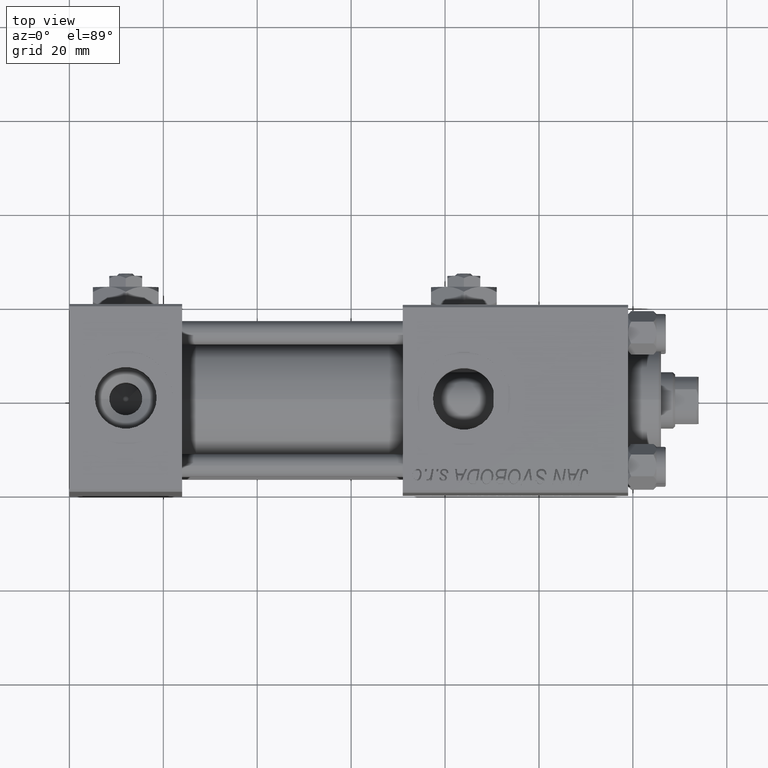
[diagram: clean part render]
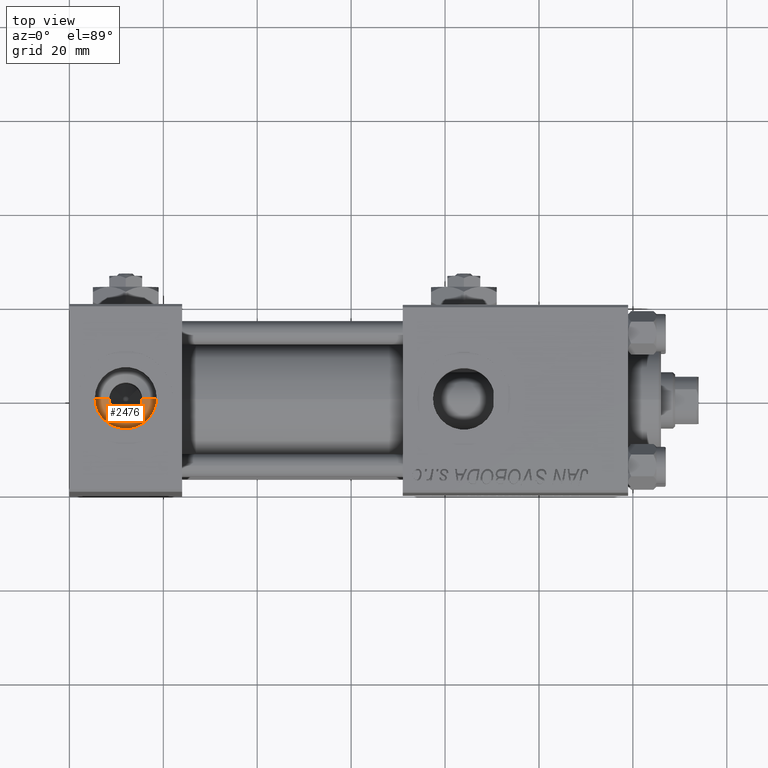
[diagram: same view with one face highlighted and labeled with its STEP entity id]
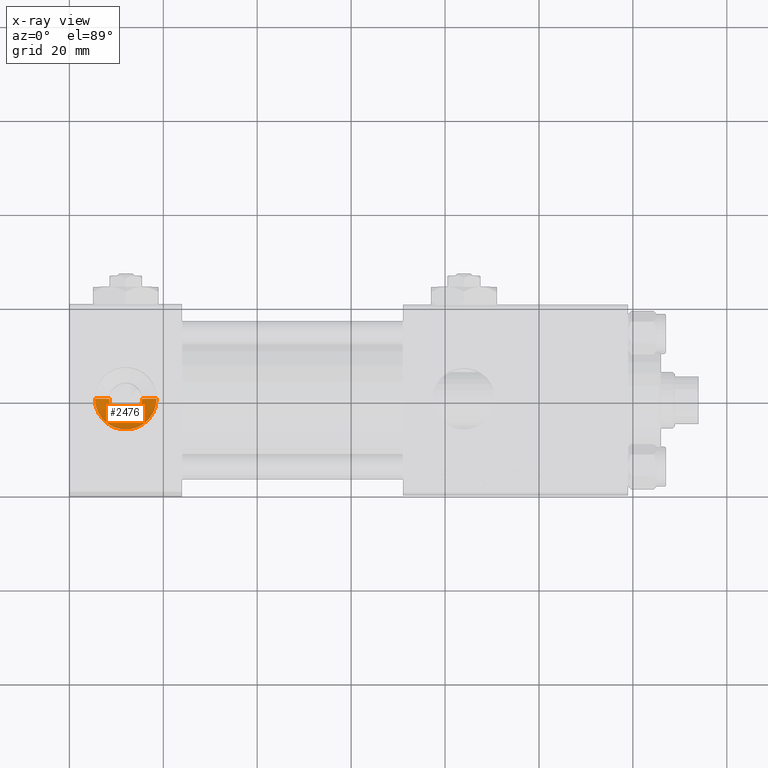
[diagram: x-ray of the same camera — body ghosted, the highlighted face saturated]
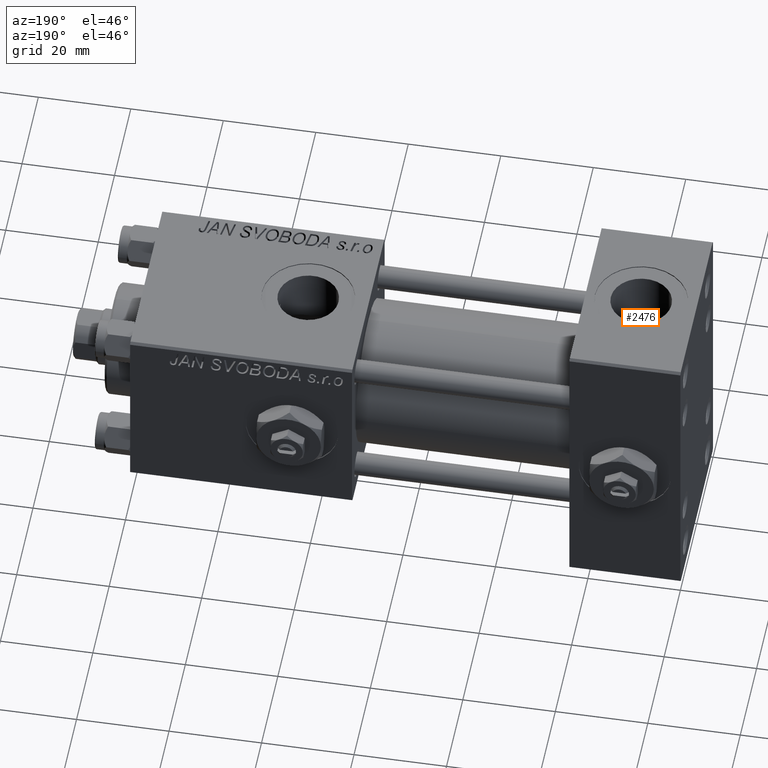
[diagram: same view with one face highlighted and labeled with its STEP entity id]
A machine part, top view. The second image highlights one B-rep face of the part: STEP entity #2476.
The next image is the same camera in x-ray: the body ghosted, the highlighted face saturated — about 0% of this face is hidden behind the body in this view.
A second angle (auxiliary view) of the same face is appended — the face is thin or edge-on in the first view.
In plain terms, the highlighted conical surface has half-angle 60.452 deg.
Its self-contained STEP definition (entity closure, byte-faithful):
#2476 = ADVANCED_FACE ( 'NONE', ( #31775 ), #3597, .F. ) ;
#3597 = CONICAL_SURFACE ( 'NONE', #32930, 3.499999999999999556, 1.055086625138361267 ) ;
#3741 = VERTEX_POINT ( 'NONE', #21583 ) ;
#3751 = CARTESIAN_POINT ( 'NONE',  ( 8.500000000000000000, 5.632796807631995091E-15, 19.41999999999999815 ) ) ;
#7485 = CARTESIAN_POINT ( 'NONE',  ( 8.500000000000000000, 5.632796807631995091E-15, 19.41999999999999815 ) ) ;
#10350 = EDGE_CURVE ( 'NONE', #45251, #3741, #27151, .T. ) ;
#10430 = CIRCLE ( 'NONE', #17139, 3.499999999999999556 ) ;
#11053 = DIRECTION ( 'NONE',  ( 0.000000000000000000, 0.000000000000000000, 1.000000000000000000 ) ) ;
#12320 = AXIS2_PLACEMENT_3D ( 'NONE', #24528, #37395, #49219 ) ;
#15356 = ORIENTED_EDGE ( 'NONE', *, *, #37082, .F. ) ;
#16959 = EDGE_LOOP ( 'NONE', ( #15356, #49316, #23112, #39649 ) ) ;
#17139 = AXIS2_PLACEMENT_3D ( 'NONE', #46430, #26470, #42492 ) ;
#18681 = DIRECTION ( 'NONE',  ( 1.000000000000000000, 0.000000000000000000, 0.000000000000000000 ) ) ;
#19350 = EDGE_CURVE ( 'NONE', #3741, #38609, #24909, .T. ) ;
#19452 = CARTESIAN_POINT ( 'NONE',  ( 12.00000000000000000, 5.204170427930421283E-15, 19.41999999999999815 ) ) ;
#20346 = LINE ( 'NONE', #7485, #51266 ) ;
#21583 = CARTESIAN_POINT ( 'NONE',  ( 18.57999999999999829, 5.204170427930421283E-15, 21.16598726114649764 ) ) ;
#22440 = DIRECTION ( 'NONE',  ( 0.8699429503561852961, 0.000000000000000000, 0.4931523731318503412 ) ) ;
#23047 = VECTOR ( 'NONE', #22440, 1000.000000000000000 ) ;
#23112 = ORIENTED_EDGE ( 'NONE', *, *, #19350, .F. ) ;
#24528 = CARTESIAN_POINT ( 'NONE',  ( 12.00000000000000000, 5.204170427930421283E-15, 21.16598726114649764 ) ) ;
#24909 = CIRCLE ( 'NONE', #12320, 6.579999999999999183 ) ;
#26470 = DIRECTION ( 'NONE',  ( 0.000000000000000000, 0.000000000000000000, 1.000000000000000000 ) ) ;
#27151 = LINE ( 'NONE', #46867, #23047 ) ;
#30322 = EDGE_CURVE ( 'NONE', #31754, #38609, #20346, .T. ) ;
#31754 = VERTEX_POINT ( 'NONE', #3751 ) ;
#31775 = FACE_OUTER_BOUND ( 'NONE', #16959, .T. ) ;
#32930 = AXIS2_PLACEMENT_3D ( 'NONE', #19452, #11053, #18681 ) ;
#37082 = EDGE_CURVE ( 'NONE', #31754, #45251, #10430, .T. ) ;
#37395 = DIRECTION ( 'NONE',  ( -0.000000000000000000, -0.000000000000000000, -1.000000000000000000 ) ) ;
#38609 = VERTEX_POINT ( 'NONE', #50777 ) ;
#39649 = ORIENTED_EDGE ( 'NONE', *, *, #10350, .F. ) ;
#42492 = DIRECTION ( 'NONE',  ( 1.000000000000000000, 0.000000000000000000, 0.000000000000000000 ) ) ;
#44498 = DIRECTION ( 'NONE',  ( -0.8699429503561852961, 1.065372849594507103E-16, 0.4931523731318503412 ) ) ;
#45251 = VERTEX_POINT ( 'NONE', #48957 ) ;
#46430 = CARTESIAN_POINT ( 'NONE',  ( 12.00000000000000000, 5.204170427930421283E-15, 19.41999999999999815 ) ) ;
#46867 = CARTESIAN_POINT ( 'NONE',  ( 15.50000000000000000, 5.204170427930421283E-15, 19.41999999999999815 ) ) ;
#48957 = CARTESIAN_POINT ( 'NONE',  ( 15.50000000000000000, 5.204170427930421283E-15, 19.41999999999999815 ) ) ;
#49219 = DIRECTION ( 'NONE',  ( 1.000000000000000000, 0.000000000000000000, 0.000000000000000000 ) ) ;
#49316 = ORIENTED_EDGE ( 'NONE', *, *, #30322, .T. ) ;
#50777 = CARTESIAN_POINT ( 'NONE',  ( 5.420000000000000817, 6.009988021769379536E-15, 21.16598726114649764 ) ) ;
#51266 = VECTOR ( 'NONE', #44498, 1000.000000000000000 ) ;